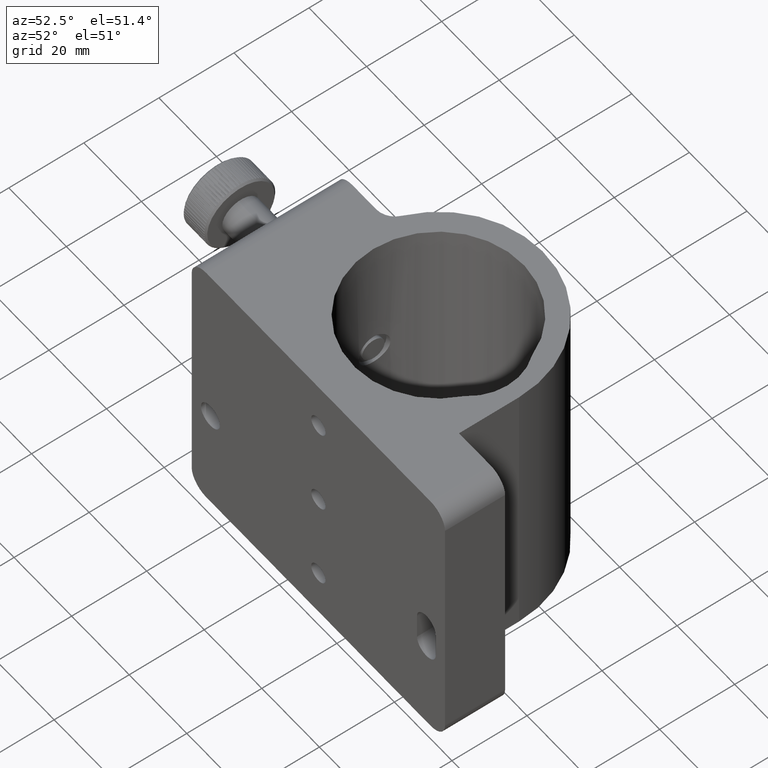
[diagram: clean part render]
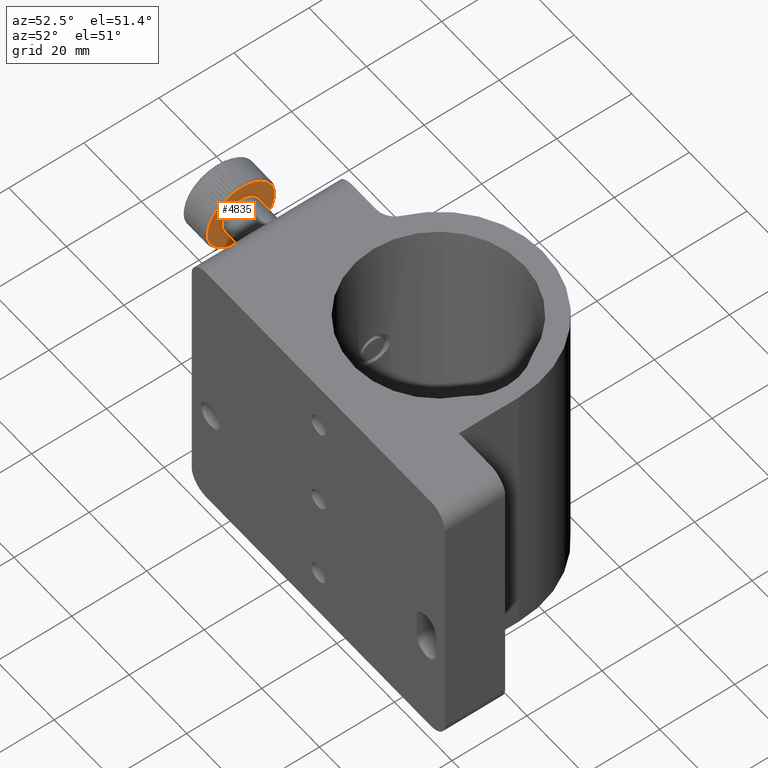
[diagram: same view with one face highlighted and labeled with its STEP entity id]
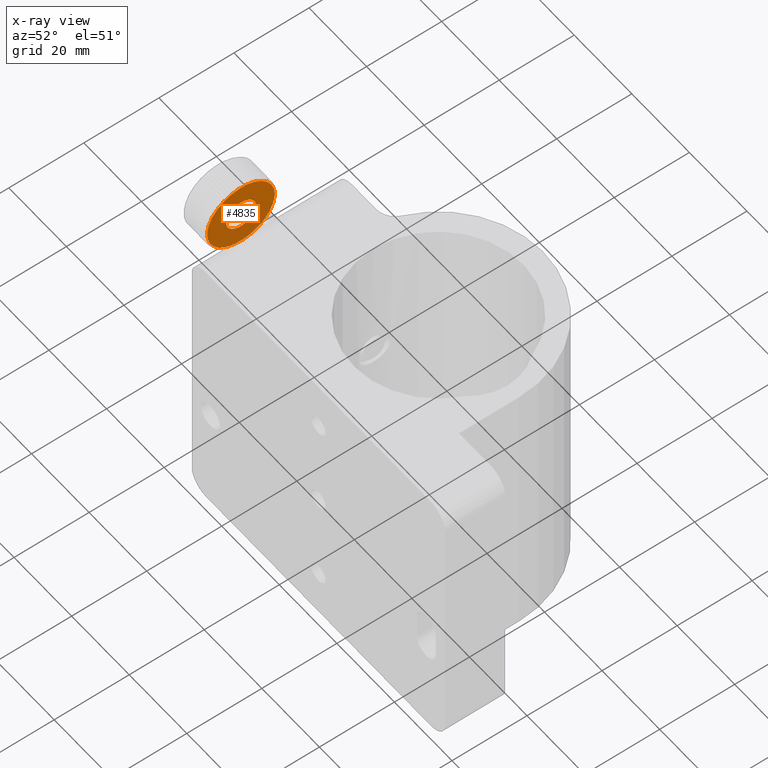
[diagram: x-ray of the same camera — body ghosted, the highlighted face saturated]
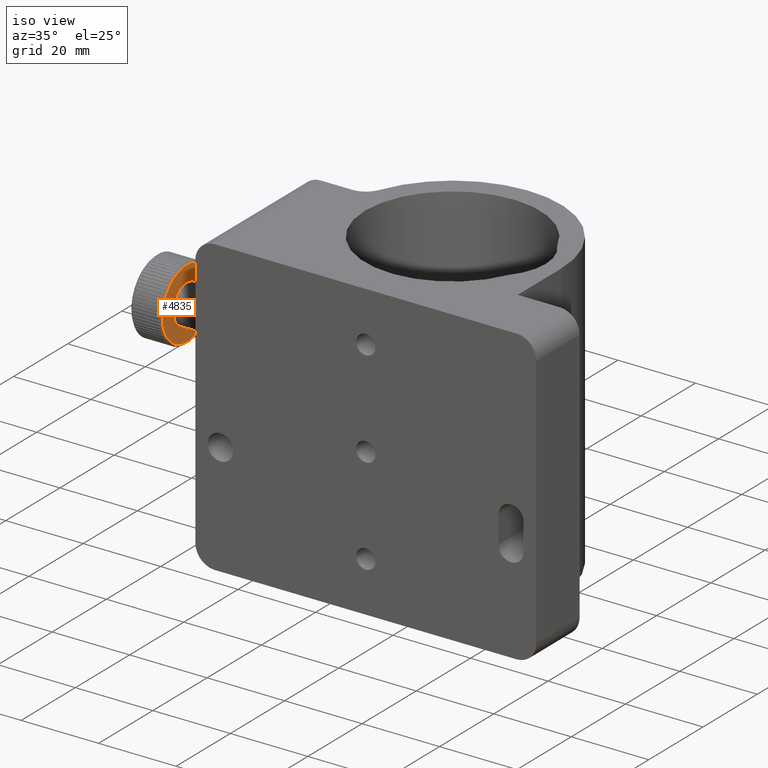
[diagram: same view with one face highlighted and labeled with its STEP entity id]
A machine part, auxiliary view. The second image highlights one B-rep face of the part: STEP entity #4835.
The next image is the same camera in x-ray: the body ghosted, the highlighted face saturated — about 2% of this face is hidden behind the body in this view.
A second angle (iso view) of the same face is appended — the face is thin or edge-on in the first view.
In plain terms, the highlighted planar face has unit normal (1, -0, 0).
Its self-contained STEP definition (entity closure, byte-faithful):
#146 = AXIS2_PLACEMENT_3D ( 'NONE', #6218, #3362, #5409 ) ;
#448 = DIRECTION ( 'NONE',  ( 0.0000000000000000000, 0.3080093175159864800, -0.9513833403646168000 ) ) ;
#522 = EDGE_CURVE ( 'NONE', #1452, #3620, #6844, .T. ) ;
#668 = CARTESIAN_POINT ( 'NONE',  ( -96.36907623515101300, 10.26805235390143900, 12.56245006328155600 ) ) ;
#776 = EDGE_LOOP ( 'NONE', ( #1892, #6949 ) ) ;
#892 = EDGE_CURVE ( 'NONE', #8174, #8724, #2795, .T. ) ;
#1452 = VERTEX_POINT ( 'NONE', #668 ) ;
#1580 = CARTESIAN_POINT ( 'NONE',  ( -96.36907623515101300, 13.04013621154531900, 4.000000000000002700 ) ) ;
#1583 = FACE_BOUND ( 'NONE', #776, .T. ) ;
#1892 = ORIENTED_EDGE ( 'NONE', *, *, #8070, .F. ) ;
#2001 = DIRECTION ( 'NONE',  ( 1.000000000000000000, -5.551115123125769100E-017, 3.081487911019578000E-033 ) ) ;
#2433 = CARTESIAN_POINT ( 'NONE',  ( -96.36907623515101300, 11.82349940735717200, 7.757964194440239300 ) ) ;
#2795 = CIRCLE ( 'NONE', #146, 3.949999999999999700 ) ;
#3362 = DIRECTION ( 'NONE',  ( 1.000000000000000000, -5.551115123125769800E-017, 3.081487911019578000E-033 ) ) ;
#3552 = EDGE_CURVE ( 'NONE', #3620, #1452, #6697, .T. ) ;
#3620 = VERTEX_POINT ( 'NONE', #5319 ) ;
#3678 = FACE_OUTER_BOUND ( 'NONE', #7844, .T. ) ;
#3903 = DIRECTION ( 'NONE',  ( 1.000000000000000000, -5.551115123125769800E-017, 3.081487911019578000E-033 ) ) ;
#3966 = ORIENTED_EDGE ( 'NONE', *, *, #3552, .T. ) ;
#4835 = ADVANCED_FACE ( 'NONE', ( #3678, #1583 ), #5489, .T. ) ;
#5192 = CARTESIAN_POINT ( 'NONE',  ( -96.36907623515101300, 13.04013621154531900, 4.000000000000002700 ) ) ;
#5257 = DIRECTION ( 'NONE',  ( 0.0000000000000000000, 0.3080093175159864800, -0.9513833403646168000 ) ) ;
#5319 = CARTESIAN_POINT ( 'NONE',  ( -96.36907623515101300, 15.81222006918919800, -4.562450063281551700 ) ) ;
#5409 = DIRECTION ( 'NONE',  ( 0.0000000000000000000, 0.3080093175159865400, -0.9513833403646168000 ) ) ;
#5416 = AXIS2_PLACEMENT_3D ( 'NONE', #1580, #5853, #7919 ) ;
#5420 = AXIS2_PLACEMENT_3D ( 'NONE', #6268, #3903, #448 ) ;
#5489 = PLANE ( 'NONE',  #5814 ) ;
#5814 = AXIS2_PLACEMENT_3D ( 'NONE', #9080, #2001, #7623 ) ;
#5853 = DIRECTION ( 'NONE',  ( 1.000000000000000000, -5.551115123125769800E-017, 3.081487911019578000E-033 ) ) ;
#6218 = CARTESIAN_POINT ( 'NONE',  ( -96.36907623515101300, 13.04013621154531900, 4.000000000000002700 ) ) ;
#6268 = CARTESIAN_POINT ( 'NONE',  ( -96.36907623515101300, 13.04013621154531900, 4.000000000000002700 ) ) ;
#6351 = AXIS2_PLACEMENT_3D ( 'NONE', #5192, #6728, #5257 ) ;
#6674 = CIRCLE ( 'NONE', #5416, 3.949999999999999700 ) ;
#6697 = CIRCLE ( 'NONE', #6351, 9.000000000000003600 ) ;
#6728 = DIRECTION ( 'NONE',  ( 1.000000000000000000, -5.551115123125769800E-017, 3.081487911019578000E-033 ) ) ;
#6844 = CIRCLE ( 'NONE', #5420, 9.000000000000003600 ) ;
#6930 = ORIENTED_EDGE ( 'NONE', *, *, #522, .T. ) ;
#6949 = ORIENTED_EDGE ( 'NONE', *, *, #892, .F. ) ;
#7623 = DIRECTION ( 'NONE',  ( 1.709795180526639600E-017, 0.3080093175159864800, -0.9513833403646166900 ) ) ;
#7844 = EDGE_LOOP ( 'NONE', ( #6930, #3966 ) ) ;
#7919 = DIRECTION ( 'NONE',  ( 0.0000000000000000000, 0.3080093175159865400, -0.9513833403646168000 ) ) ;
#8041 = CARTESIAN_POINT ( 'NONE',  ( -96.36907623515101300, 14.25677301573346500, 0.2420358055597662800 ) ) ;
#8070 = EDGE_CURVE ( 'NONE', #8724, #8174, #6674, .T. ) ;
#8174 = VERTEX_POINT ( 'NONE', #8041 ) ;
#8724 = VERTEX_POINT ( 'NONE', #2433 ) ;
#9080 = CARTESIAN_POINT ( 'NONE',  ( -96.36907623515101300, 13.04013621154531900, 4.000000000000002700 ) ) ;